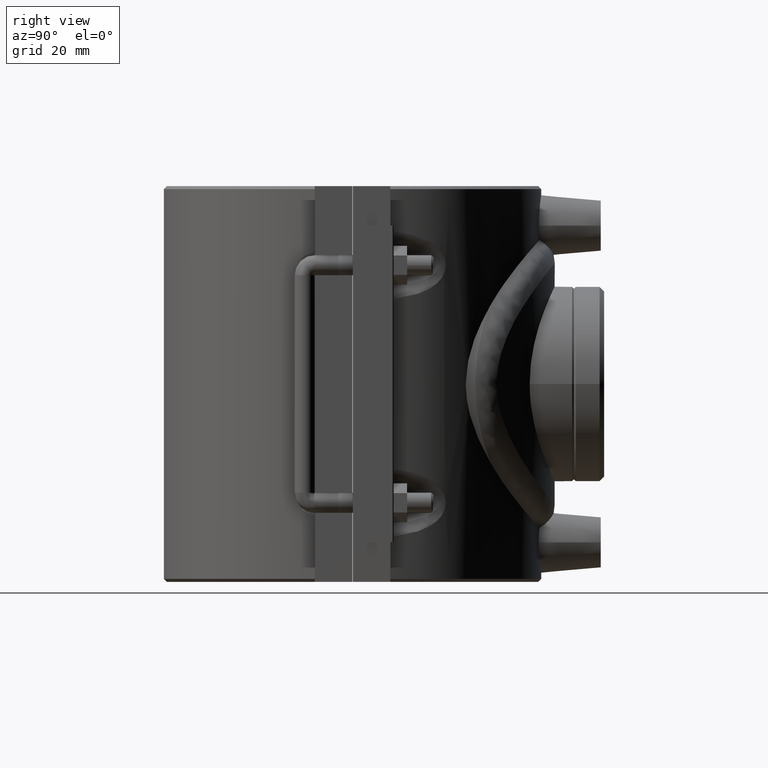
[diagram: clean part render]
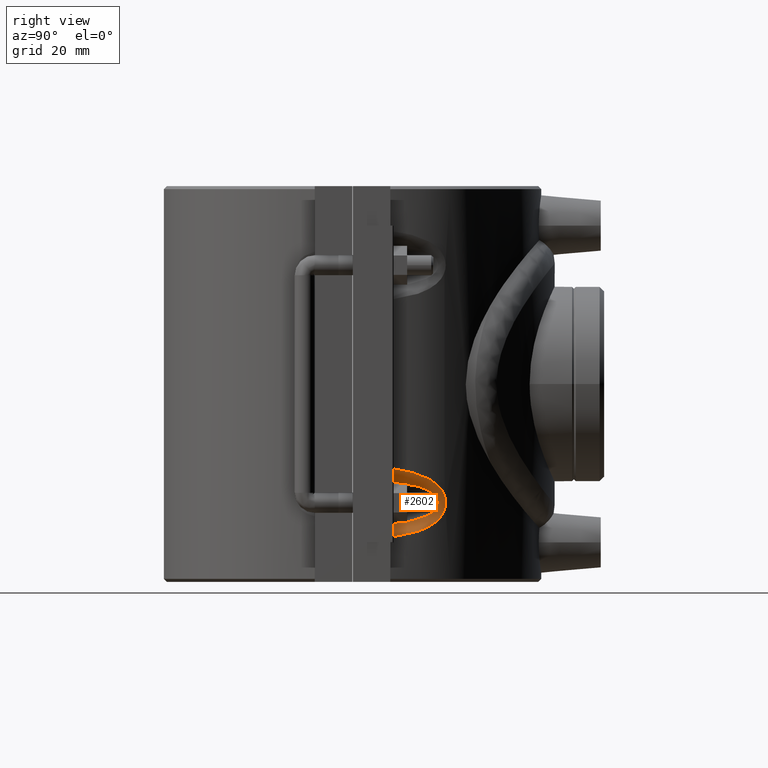
[diagram: same view with one face highlighted and labeled with its STEP entity id]
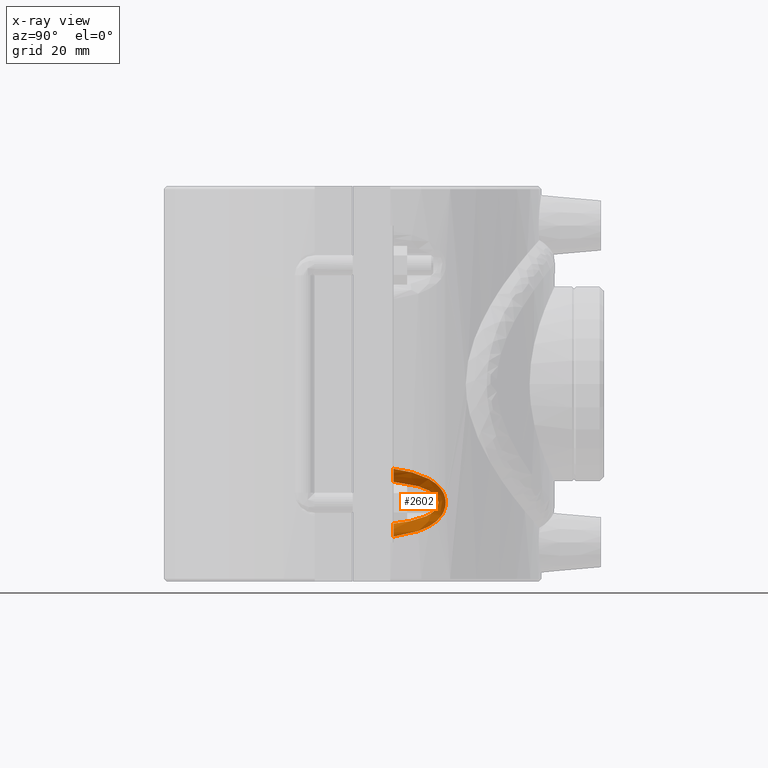
[diagram: x-ray of the same camera — body ghosted, the highlighted face saturated]
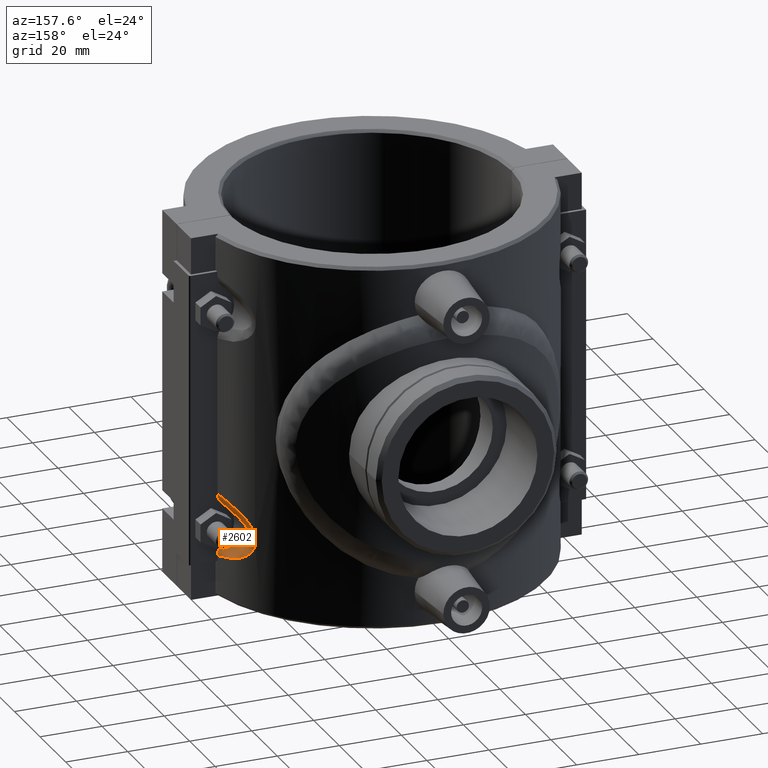
[diagram: same view with one face highlighted and labeled with its STEP entity id]
A machine part, right view. The second image highlights one B-rep face of the part: STEP entity #2602.
The next image is the same camera in x-ray: the body ghosted, the highlighted face saturated — about 0% of this face is hidden behind the body in this view.
A second angle (auxiliary view) of the same face is appended — the face is thin or edge-on in the first view.
In plain terms, the highlighted face is a freeform B-spline surface patch.
Its self-contained STEP definition (entity closure, byte-faithful):
#64=B_SPLINE_SURFACE_WITH_KNOTS('',3,3,((#5251,#5252,#5253,#5254,#5255,
#5256,#5257,#5258,#5259,#5260,#5261,#5262,#5263,#5264),(#5265,#5266,#5267,
#5268,#5269,#5270,#5271,#5272,#5273,#5274,#5275,#5276,#5277,#5278),(#5279,
#5280,#5281,#5282,#5283,#5284,#5285,#5286,#5287,#5288,#5289,#5290,#5291,
#5292),(#5293,#5294,#5295,#5296,#5297,#5298,#5299,#5300,#5301,#5302,#5303,
#5304,#5305,#5306),(#5307,#5308,#5309,#5310,#5311,#5312,#5313,#5314,#5315,
#5316,#5317,#5318,#5319,#5320)),.UNSPECIFIED.,.F.,.F.,.F.,(4,1,4),(4,1,
1,1,1,1,1,1,1,1,1,4),(0.,0.571428571428571,1.),(0.462286333428818,1.03100024023089,
1.59971414703297,1.78928544930033,1.97885675156768,2.16842805383504,2.3579993561024,
2.73714196063712,3.02149891403816,3.30585586743919,3.87456977424127,4.44328368104334),
 .UNSPECIFIED.);
#159=B_SPLINE_CURVE_WITH_KNOTS('',3,(#3932,#3933,#3934,#3935,#3936,#3937,
#3938,#3939),.UNSPECIFIED.,.F.,.F.,(4,2,2,4),(-0.459821356887532,-0.317975190723429,
-0.174813727590547,0.),.UNSPECIFIED.);
#160=B_SPLINE_CURVE_WITH_KNOTS('',3,(#3943,#3944,#3945,#3946,#3947,#3948,
#3949,#3950),.UNSPECIFIED.,.F.,.F.,(4,2,2,4),(-0.46029236544087,-0.32664823032733,
-0.193140780308425,0.),.UNSPECIFIED.);
#179=B_SPLINE_CURVE_WITH_KNOTS('',3,(#4597,#4598,#4599,#4600,#4601,#4602,
#4603,#4604,#4605,#4606,#4607,#4608,#4609,#4610),.UNSPECIFIED.,.F.,.F.,
(4,1,1,1,1,1,1,1,1,1,1,4),(-4.44328367939686,-3.87456977306521,-3.30585586673356,
-3.02149891356773,-2.73714196040191,-2.35799935618081,-2.16842805407026,
-1.9788567519597,-1.78928544984915,-1.5997141477386,-1.03100024140695,-0.462286335075303),
 .UNSPECIFIED.);
#209=B_SPLINE_CURVE_WITH_KNOTS('',3,(#5321,#5322,#5323,#5324,#5325,#5326,
#5327,#5328,#5329,#5330,#5331,#5332,#5333,#5334),.UNSPECIFIED.,.F.,.F.,
(4,1,1,1,1,1,1,1,1,1,1,4),(0.564036069390716,1.03100024023089,1.59971414703297,
1.78928544930033,1.97885675156768,2.16842805383504,2.3579993561024,2.73714196063712,
3.02149891403816,3.30585586743919,3.87456977424127,4.34152806561829),
 .UNSPECIFIED.);
#303=FACE_OUTER_BOUND('',#487,.T.);
#487=EDGE_LOOP('',(#2129,#2130,#2131,#2132));
#1118=VERTEX_POINT('',#3929);
#1119=VERTEX_POINT('',#3931);
#1120=VERTEX_POINT('',#3940);
#1121=VERTEX_POINT('',#3942);
#1387=EDGE_CURVE('',#1119,#1118,#159,.T.);
#1389=EDGE_CURVE('',#1121,#1120,#160,.T.);
#1467=EDGE_CURVE('',#1118,#1121,#179,.T.);
#1579=EDGE_CURVE('',#1120,#1119,#209,.T.);
#2129=ORIENTED_EDGE('',*,*,#1387,.T.);
#2130=ORIENTED_EDGE('',*,*,#1467,.T.);
#2131=ORIENTED_EDGE('',*,*,#1389,.T.);
#2132=ORIENTED_EDGE('',*,*,#1579,.T.);
#2602=ADVANCED_FACE('',(#303),#64,.F.);
#3929=CARTESIAN_POINT('',(54.8999089179792,12.2500000162774,-45.4922171990468));
#3931=CARTESIAN_POINT('',(52.7995127249413,12.25,-41.6133651632646));
#3932=CARTESIAN_POINT('Ctrl Pts',(52.7995127249413,12.25,-41.6133651632646));
#3933=CARTESIAN_POINT('Ctrl Pts',(53.1916094332704,12.25,-41.8784384674486));
#3934=CARTESIAN_POINT('Ctrl Pts',(53.5436910312816,12.2500000000099,-42.1991941917333));
#3935=CARTESIAN_POINT('Ctrl Pts',(54.1450167782941,12.2500000000099,-42.9357612802664));
#3936=CARTESIAN_POINT('Ctrl Pts',(54.3903496386964,12.2500000000087,-43.3488584304872));
#3937=CARTESIAN_POINT('Ctrl Pts',(54.78608475066,12.2500000000087,-44.3328058946848));
#3938=CARTESIAN_POINT('Ctrl Pts',(54.8999089252432,12.25,-44.9095047780439));
#3939=CARTESIAN_POINT('Ctrl Pts',(54.8999089252432,12.25,-45.4922172033458));
#3940=CARTESIAN_POINT('',(52.7995127249413,12.25,-29.1866348367354));
#3942=CARTESIAN_POINT('',(54.8999089179792,12.2500000162774,-25.3077828009532));
#3943=CARTESIAN_POINT('Ctrl Pts',(54.8999089252432,12.25,-25.3077827966542));
#3944=CARTESIAN_POINT('Ctrl Pts',(54.8999089252432,12.25,-25.7528665930126));
#3945=CARTESIAN_POINT('Ctrl Pts',(54.8334749357762,12.2499999999938,-26.195255619295));
#3946=CARTESIAN_POINT('Ctrl Pts',(54.575738338568,12.2499999999938,-27.0470670102956));
#3947=CARTESIAN_POINT('Ctrl Pts',(54.3859816276151,12.2499999994194,-27.4519085707767));
#3948=CARTESIAN_POINT('Ctrl Pts',(53.7909628622603,12.2499999994194,-28.3632881933961));
#3949=CARTESIAN_POINT('Ctrl Pts',(53.3328701453743,12.25,-28.8260635522996));
#3950=CARTESIAN_POINT('Ctrl Pts',(52.7995127249413,12.25,-29.1866348367354));
#4597=CARTESIAN_POINT('Ctrl Pts',(54.8999089213824,12.2500000173027,-45.4922172010609));
#4598=CARTESIAN_POINT('Ctrl Pts',(54.4553876870139,14.2421775884127,-45.2291432382383));
#4599=CARTESIAN_POINT('Ctrl Pts',(53.357554119127,18.1451299015504,-44.5146741290753));
#4600=CARTESIAN_POINT('Ctrl Pts',(51.5405877928115,22.6520729192052,-42.7967864685537));
#4601=CARTESIAN_POINT('Ctrl Pts',(50.0826403937179,25.6428613553268,-40.5196223513101));
#4602=CARTESIAN_POINT('Ctrl Pts',(49.0655092770038,27.5219311492863,-37.9839805244393));
#4603=CARTESIAN_POINT('Ctrl Pts',(48.7834974437151,28.0021473593733,-35.0527483126605));
#4604=CARTESIAN_POINT('Ctrl Pts',(49.2237191508031,27.2296283470761,-32.6160328895992));
#4605=CARTESIAN_POINT('Ctrl Pts',(49.7691326935468,26.2235997596985,-31.0302298878456));
#4606=CARTESIAN_POINT('Ctrl Pts',(50.4463001689457,24.9020311488208,-29.7010027728902));
#4607=CARTESIAN_POINT('Ctrl Pts',(51.6628854420496,22.3500690219218,-27.8894523617628));
#4608=CARTESIAN_POINT('Ctrl Pts',(53.3564339655973,18.146621247894,-26.2844579246913));
#4609=CARTESIAN_POINT('Ctrl Pts',(54.4553876870116,14.2421775884126,-25.5708567617585));
#4610=CARTESIAN_POINT('Ctrl Pts',(54.8999089213824,12.2500000173027,-25.3077827989391));
#5251=CARTESIAN_POINT('Ctrl Pts',(52.9424476320148,11.27,-29.0923642479089));
#5252=CARTESIAN_POINT('Ctrl Pts',(52.686847922604,13.1028033656132,-29.25678547433));
#5253=CARTESIAN_POINT('Ctrl Pts',(52.0549495302184,16.6948915480625,-29.7027862029321));
#5254=CARTESIAN_POINT('Ctrl Pts',(51.0811591291785,20.562063500168,-30.7059077261018));
#5255=CARTESIAN_POINT('Ctrl Pts',(50.3816225971438,22.9098686569151,-31.8381267330564));
#5256=CARTESIAN_POINT('Ctrl Pts',(49.9922512987894,24.1257117789226,-32.6688936799035));
#5257=CARTESIAN_POINT('Ctrl Pts',(49.6786385117118,25.05125807931,-33.6600205559995));
#5258=CARTESIAN_POINT('Ctrl Pts',(49.4255110301362,25.7619755706235,-35.1829676954128));
#5259=CARTESIAN_POINT('Ctrl Pts',(49.5876678342772,25.3201766573434,-37.0149878277746));
#5260=CARTESIAN_POINT('Ctrl Pts',(50.1725182263878,23.5914324469006,-38.5997639695688));
#5261=CARTESIAN_POINT('Ctrl Pts',(51.0108379808666,20.8399070856688,-40.0229915428461));
#5262=CARTESIAN_POINT('Ctrl Pts',(52.055593618498,16.6935195094264,-41.096671330672));
#5263=CARTESIAN_POINT('Ctrl Pts',(52.686847922604,13.1028033656132,-41.54321452567));
#5264=CARTESIAN_POINT('Ctrl Pts',(52.9424476320148,11.27,-41.7076357520911));
#5265=CARTESIAN_POINT('Ctrl Pts',(53.649335893204,11.4929998387171,-28.637639807434));
#5266=CARTESIAN_POINT('Ctrl Pts',(53.3421704264423,13.3593015502967,-28.7942926178715));
#5267=CARTESIAN_POINT('Ctrl Pts',(52.5829740675869,17.0132261062249,-29.2301907068465));
#5268=CARTESIAN_POINT('Ctrl Pts',(51.4089682162761,20.9380595250226,-30.2727312744831));
#5269=CARTESIAN_POINT('Ctrl Pts',(50.5646084944171,23.3181703696927,-31.4905034699172));
#5270=CARTESIAN_POINT('Ctrl Pts',(50.0943715594157,24.5501273143345,-32.3938572794564));
#5271=CARTESIAN_POINT('Ctrl Pts',(49.7155982309752,25.4875904815006,-33.4805570036078));
#5272=CARTESIAN_POINT('Ctrl Pts',(49.4098419814429,26.2072312176048,-35.1596186404619));
#5273=CARTESIAN_POINT('Ctrl Pts',(49.6057014668667,25.7599714280194,-37.1842996151648));
#5274=CARTESIAN_POINT('Ctrl Pts',(50.3121607314675,24.008962834399,-38.918620907186));
#5275=CARTESIAN_POINT('Ctrl Pts',(51.3240639602214,21.2200272489951,-40.4535493917635));
#5276=CARTESIAN_POINT('Ctrl Pts',(52.5837564874156,17.0118408728741,-41.569189358776));
#5277=CARTESIAN_POINT('Ctrl Pts',(53.3421704264423,13.3593015502967,-42.0057073821285));
#5278=CARTESIAN_POINT('Ctrl Pts',(53.649335893204,11.4929998387171,-42.162360192566));
#5279=CARTESIAN_POINT('Ctrl Pts',(54.6382092693185,11.8824972115833,-27.4613056043628));
#5280=CARTESIAN_POINT('Ctrl Pts',(54.2434528164652,13.8074010538897,-27.6415038732893));
#5281=CARTESIAN_POINT('Ctrl Pts',(53.2696626832674,17.5695809967155,-28.1440552893098));
#5282=CARTESIAN_POINT('Ctrl Pts',(51.7816817687633,21.595636013806,-29.3635469876743));
#5283=CARTESIAN_POINT('Ctrl Pts',(50.7188616505314,24.0324690606832,-30.7947116217677));
#5284=CARTESIAN_POINT('Ctrl Pts',(50.1287853509738,25.2927329361098,-31.8579127685084));
#5285=CARTESIAN_POINT('Ctrl Pts',(49.6544991607965,26.2511076646909,-33.1378602825894));
#5286=CARTESIAN_POINT('Ctrl Pts',(49.272441141177,26.9863997228182,-35.1166299077635));
#5287=CARTESIAN_POINT('Ctrl Pts',(49.5169124544423,26.5295707210107,-37.503138027498));
#5288=CARTESIAN_POINT('Ctrl Pts',(50.4014502874259,24.7394649511341,-39.5456947429376));
#5289=CARTESIAN_POINT('Ctrl Pts',(51.6742877400336,21.8848795113277,-41.3500621188409));
#5290=CARTESIAN_POINT('Ctrl Pts',(53.2706249267632,17.568170917412,-42.6552151640073));
#5291=CARTESIAN_POINT('Ctrl Pts',(54.2434528164652,13.8074010538897,-43.1584961267107));
#5292=CARTESIAN_POINT('Ctrl Pts',(54.6382092693185,11.8824972115833,-43.3386943956372));
#5293=CARTESIAN_POINT('Ctrl Pts',(54.9196141886471,12.1616883945943,-25.9536713578084));
#5294=CARTESIAN_POINT('Ctrl Pts',(54.4824253311472,14.1357566753356,-26.1919323735897));
#5295=CARTESIAN_POINT('Ctrl Pts',(53.4035654355187,17.9994598502055,-26.8422396857816));
#5296=CARTESIAN_POINT('Ctrl Pts',(51.7495301308852,22.1462841515383,-28.3316496009435));
#5297=CARTESIAN_POINT('Ctrl Pts',(50.5655527292894,24.659776471256,-30.0291020189063));
#5298=CARTESIAN_POINT('Ctrl Pts',(49.9075091177995,25.9604815042724,-31.2785348141004));
#5299=CARTESIAN_POINT('Ctrl Pts',(49.3781741899008,26.9500769710803,-32.7725818543193));
#5300=CARTESIAN_POINT('Ctrl Pts',(48.951420219395,27.7096157364107,-35.0719151916079));
#5301=CARTESIAN_POINT('Ctrl Pts',(49.2246103701543,27.2376074498848,-37.8397240611267));
#5302=CARTESIAN_POINT('Ctrl Pts',(50.2118314074129,25.389212665369,-40.2274531004871));
#5303=CARTESIAN_POINT('Ctrl Pts',(51.6300752584888,22.4442000218547,-42.3627861077259));
#5304=CARTESIAN_POINT('Ctrl Pts',(53.4046449855459,17.9979996000544,-43.9569339733885));
#5305=CARTESIAN_POINT('Ctrl Pts',(54.4824253311472,14.1357566753356,-44.6080676264103));
#5306=CARTESIAN_POINT('Ctrl Pts',(54.9196141886471,12.1616883945943,-44.8463286421915));
#5307=CARTESIAN_POINT('Ctrl Pts',(54.8999089252432,12.25,-25.3077827966542));
#5308=CARTESIAN_POINT('Ctrl Pts',(54.4553876914852,14.2421775713187,-25.570856758928));
#5309=CARTESIAN_POINT('Ctrl Pts',(53.3564339655973,18.146621247894,-26.2844579246913));
#5310=CARTESIAN_POINT('Ctrl Pts',(51.6628854420496,22.3500690219218,-27.8894523617628));
#5311=CARTESIAN_POINT('Ctrl Pts',(50.4463001689457,24.9020311488208,-29.7010027728902));
#5312=CARTESIAN_POINT('Ctrl Pts',(49.7691326935468,26.2235997596985,-31.0302298878456));
#5313=CARTESIAN_POINT('Ctrl Pts',(49.2237191508031,27.2296283470761,-32.6160328895992));
#5314=CARTESIAN_POINT('Ctrl Pts',(48.7834974437151,28.0021473593733,-35.0527483126605));
#5315=CARTESIAN_POINT('Ctrl Pts',(49.0655092770038,27.5219311492863,-37.9839805244393));
#5316=CARTESIAN_POINT('Ctrl Pts',(50.0826403937179,25.6428613553268,-40.5196223513101));
#5317=CARTESIAN_POINT('Ctrl Pts',(51.5405877928115,22.6520729192052,-42.7967864685537));
#5318=CARTESIAN_POINT('Ctrl Pts',(53.357554119127,18.1451299015504,-44.5146741290753));
#5319=CARTESIAN_POINT('Ctrl Pts',(54.4553876914852,14.2421775713187,-45.229143241072));
#5320=CARTESIAN_POINT('Ctrl Pts',(54.8999089252432,12.25,-45.4922172033458));
#5321=CARTESIAN_POINT('Ctrl Pts',(52.7995180959815,12.2500149467332,-29.1864972958632));
#5322=CARTESIAN_POINT('Ctrl Pts',(52.5721710103475,13.7432513915974,-29.339891876101));
#5323=CARTESIAN_POINT('Ctrl Pts',(51.9802826257699,16.9914130154393,-29.7797021171173));
#5324=CARTESIAN_POINT('Ctrl Pts',(51.0811591291785,20.562063500168,-30.7059077261018));
#5325=CARTESIAN_POINT('Ctrl Pts',(50.3816225971438,22.9098686569151,-31.8381267330564));
#5326=CARTESIAN_POINT('Ctrl Pts',(49.9922512987894,24.1257117789226,-32.6688936799035));
#5327=CARTESIAN_POINT('Ctrl Pts',(49.6786385117118,25.05125807931,-33.6600205559995));
#5328=CARTESIAN_POINT('Ctrl Pts',(49.4255110301362,25.7619755706235,-35.1829676954128));
#5329=CARTESIAN_POINT('Ctrl Pts',(49.5876678342772,25.3201766573434,-37.0149878277746));
#5330=CARTESIAN_POINT('Ctrl Pts',(50.1725182263878,23.5914324469006,-38.5997639695688));
#5331=CARTESIAN_POINT('Ctrl Pts',(51.0108379808666,20.8399070856688,-40.0229915428461));
#5332=CARTESIAN_POINT('Ctrl Pts',(51.9808215746957,16.9902720344236,-41.0198292163696));
#5333=CARTESIAN_POINT('Ctrl Pts',(52.5722653571694,13.7430729010484,-41.4600174123543));
#5334=CARTESIAN_POINT('Ctrl Pts',(52.7995360566853,12.2500147832665,-41.6134744437077));